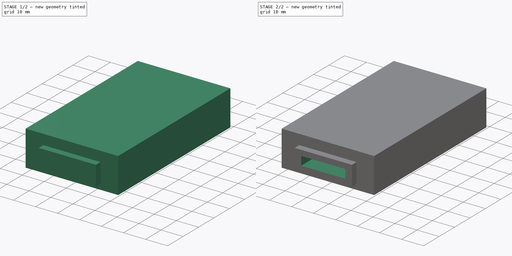
[diagram: build sequence overview — one tinted view per stage of 2, left to right]
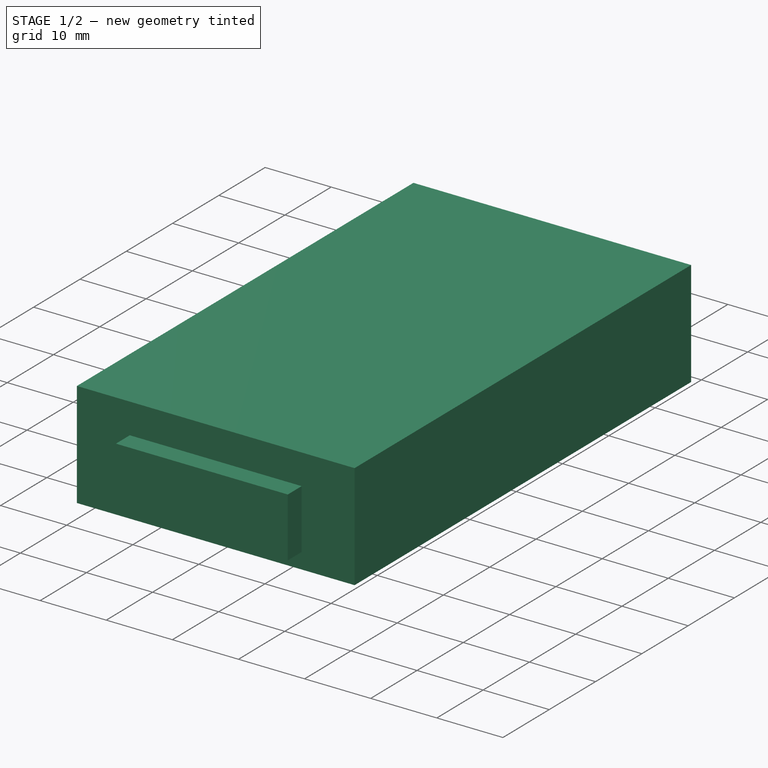
[diagram: stage 1 of 2 — iso view after this stage's code; geometry added in this stage tinted green]
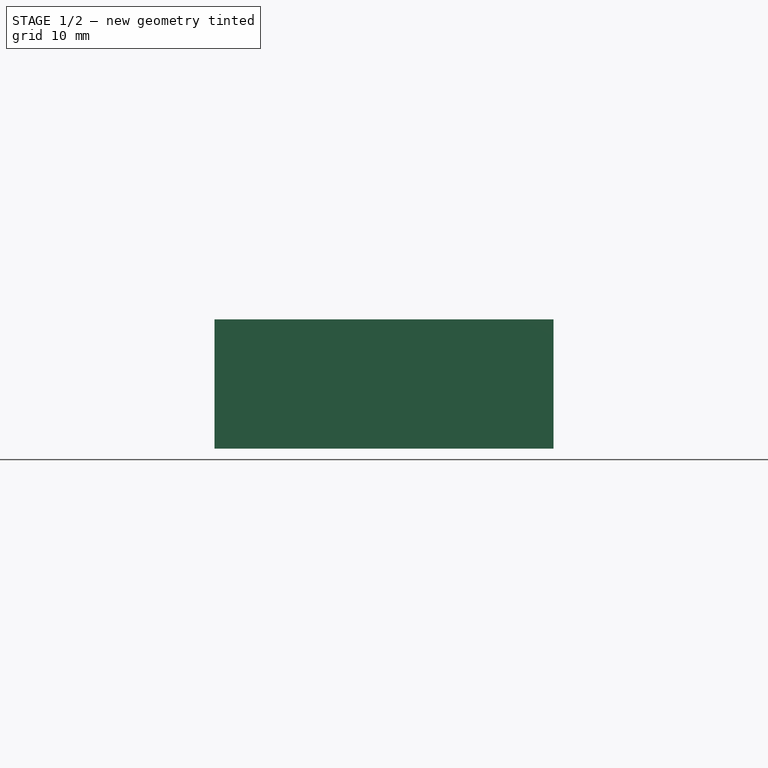
[diagram: stage 1 of 2 — front view after this stage's code; geometry added in this stage tinted green]
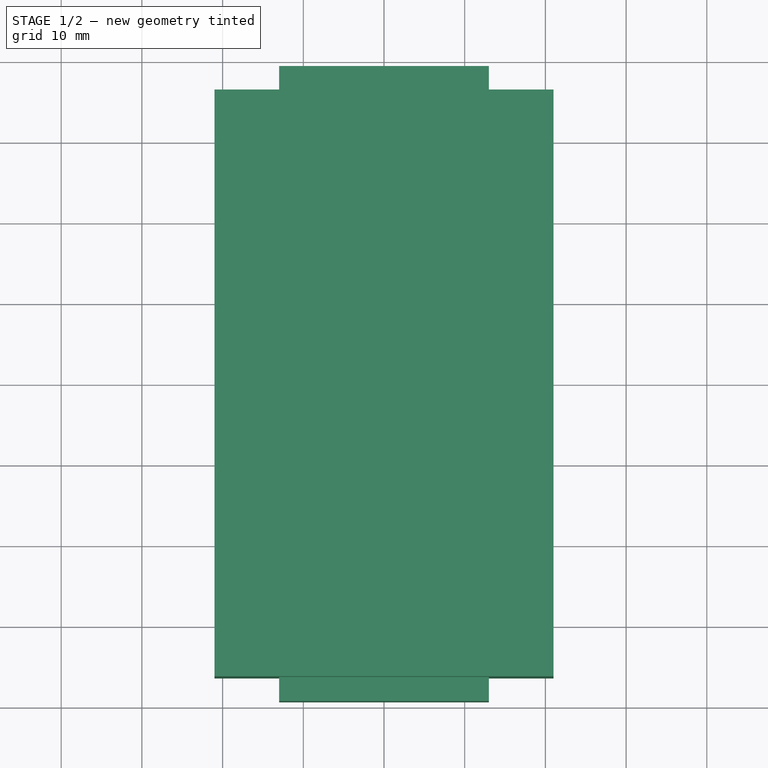
[diagram: stage 1 of 2 — top view after this stage's code; geometry added in this stage tinted green]
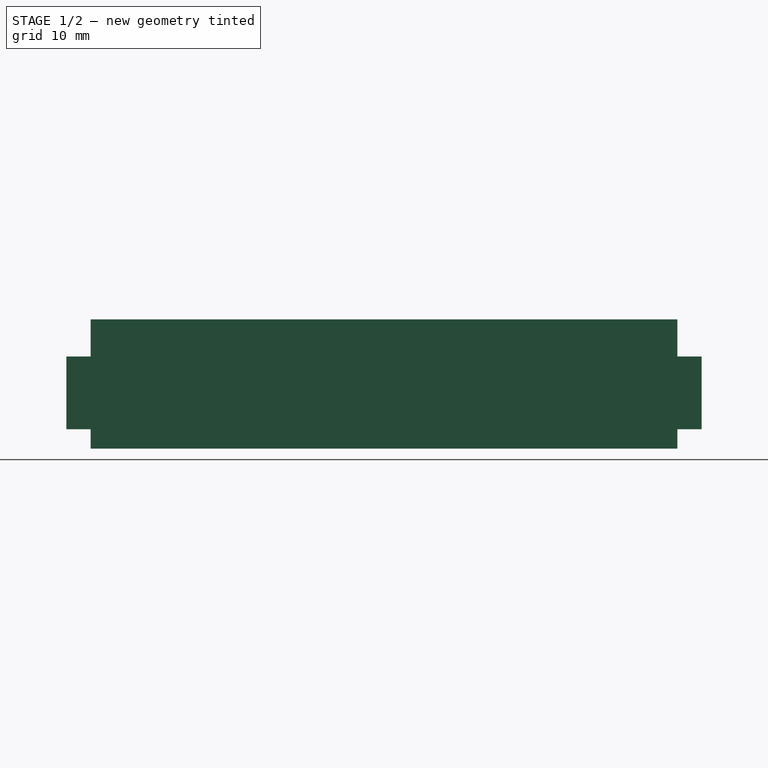
[diagram: stage 1 of 2 — right view after this stage's code; geometry added in this stage tinted green]
FCSTD DOCUMENT  (FreeCAD 0.19R24267 +99 (Git))
Label: Linear scale body
License: All rights reserved
LicenseURL: http://en.wikipedia.org/wiki/All_rights_reserved
objects: Sketcher::SketchObject×4, PartDesign::Pad×2, PartDesign::Pocket×2, PartDesign::Body×1
note: 13 computed .brp shape members not serialized (recipe doc carries the construction recipe); baked Part::Feature solids carry a one-line shape summary decoded from their .brp

FEATURE [Sketcher::SketchObject] Sketch  label="Main body cross section"
  FullyConstrained = true
  MapMode = 5
  Placement = pos=(0,0,0) rot=(1,0,0;1.5708rad)
  Support = -> [XZ_Plane]
  sketch-geometry (4):
    g0: LineSegment StartX=-21 StartY=0 StartZ=0 EndX=21 EndY=0 EndZ=0
    g1: LineSegment StartX=21 StartY=0 StartZ=0 EndX=21 EndY=16 EndZ=0
    g2: LineSegment StartX=21 StartY=16 StartZ=0 EndX=-21 EndY=16 EndZ=0
    g3: LineSegment StartX=-21 StartY=16 StartZ=0 EndX=-21 EndY=0 EndZ=0
  constraints (11):
    c: Coincident(g0,g1)
    c: Coincident(g1,g2)
    c: Coincident(g2,g3)
    c: Coincident(g3,g0)
    c: Horizontal(g2)
    c: Vertical(g1)
    c: Vertical(g3)
    c: PointOnObject(g0,g-1)
    c: DistanceX(g0,g0) = 42
    c: Symmetric(g0,g0,g-2)
    c: DistanceY(g0,g2) = 16
FEATURE [PartDesign::Pad] Pad  label="Main body length"
  Direction = (1,1,1)
  Length = 72.7
  Length2 = 100
  Midplane = true
  Placement = pos=(0,0,0) rot=(1,0,0;1.5708rad)
  Profile = -> Sketch
  Type = 0
FEATURE [Sketcher::SketchObject] Sketch001  label="End overhangs cross section"
  FullyConstrained = true
  MapMode = 5
  Placement = pos=(0,0,0) rot=(1,0,0;1.5708rad)
  Support = -> [XZ_Plane]
  sketch-geometry (4):
    g0: LineSegment StartX=-13 StartY=11.4 StartZ=0 EndX=13 EndY=11.4 EndZ=0
    g1: LineSegment StartX=13 StartY=11.4 StartZ=0 EndX=13 EndY=2.4 EndZ=0
    g2: LineSegment StartX=13 StartY=2.4 StartZ=0 EndX=-13 EndY=2.4 EndZ=0
    g3: LineSegment StartX=-13 StartY=2.4 StartZ=0 EndX=-13 EndY=11.4 EndZ=0
  constraints (11):
    c: Coincident(g0,g1)
    c: Coincident(g1,g2)
    c: Coincident(g2,g3)
    c: Coincident(g3,g0)
    c: Horizontal(g0)
    c: Vertical(g1)
    c: Vertical(g3)
    c: DistanceY(g-1,g2) = 2.4
    c: DistanceY(g3,g3) = 9
    c: DistanceX(g0,g0) = 26
    c: Symmetric(g2,g1,g-2)
FEATURE [PartDesign::Pad] Pad001  label="End overhangs length"
  BaseFeature = -> Pad
  Direction = (1,1,1)
  Length = 78.7
  Length2 = 100
  Midplane = true
  Placement = pos=(0,0,0) rot=(1,0,0;1.5708rad)
  Profile = -> Sketch001
  Type = 0
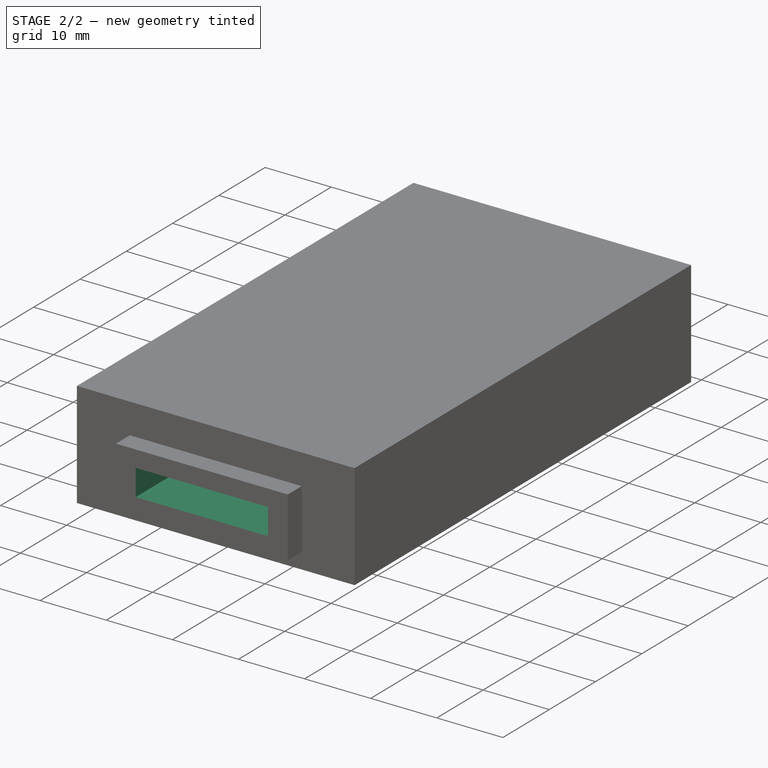
[diagram: stage 2 of 2 — iso view after this stage's code; geometry added in this stage tinted green]
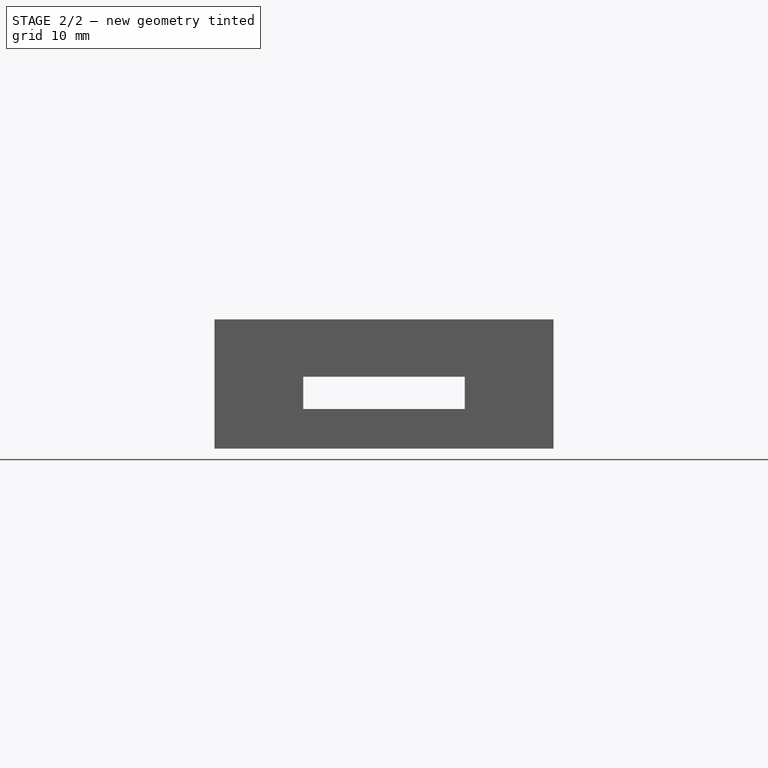
[diagram: stage 2 of 2 — front view after this stage's code; geometry added in this stage tinted green]
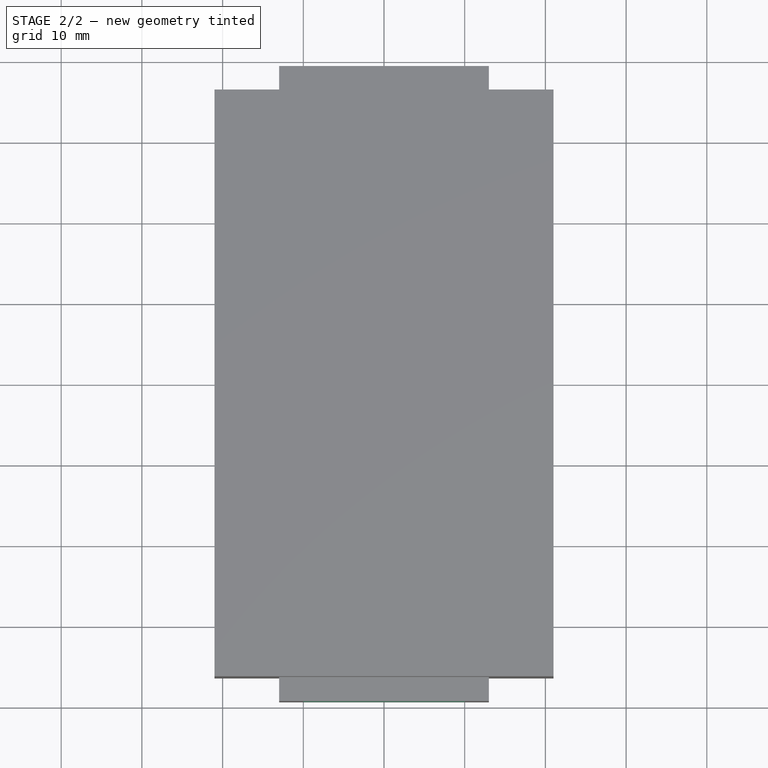
[diagram: stage 2 of 2 — top view after this stage's code; geometry added in this stage tinted green]
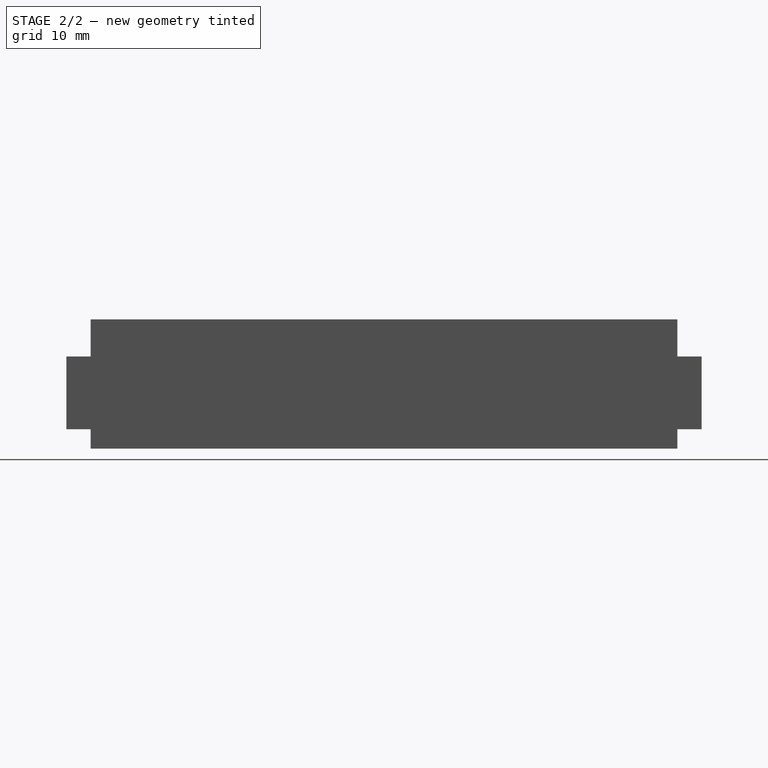
[diagram: stage 2 of 2 — right view after this stage's code; geometry added in this stage tinted green]
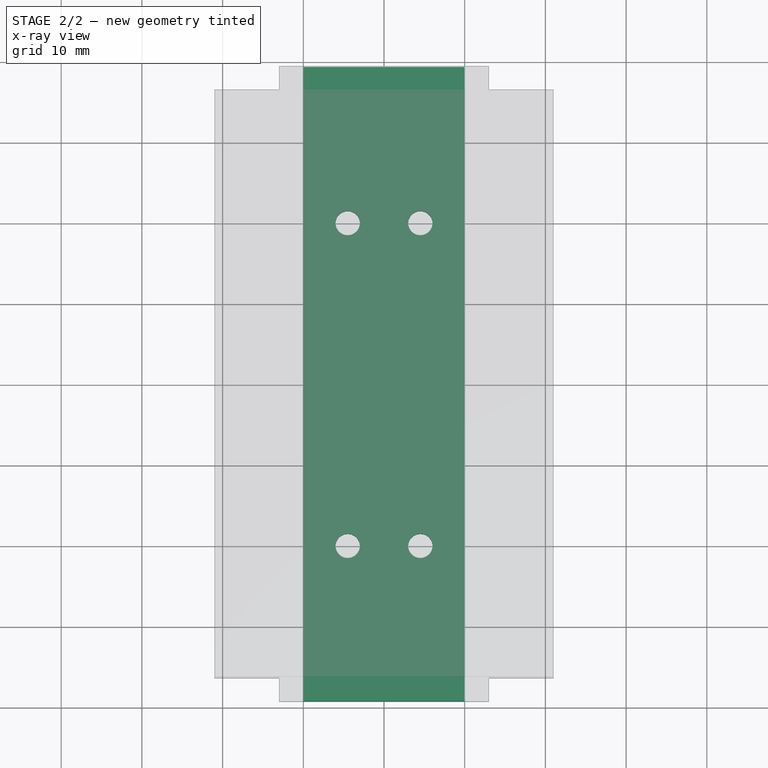
[diagram: stage 2 of 2 — x-ray composite at the top view; earlier geometry ghosted, this stage's added geometry solid]
FEATURE [Sketcher::SketchObject] Sketch002  label="Central slot cross section"
  FullyConstrained = true
  MapMode = 5
  Placement = pos=(0,0,0) rot=(1,0,0;1.5708rad)
  Support = -> [XZ_Plane]
  sketch-geometry (4):
    g0: LineSegment StartX=-10 StartY=8.9 StartZ=0 EndX=10 EndY=8.9 EndZ=0
    g1: LineSegment StartX=10 StartY=8.9 StartZ=0 EndX=10 EndY=4.9 EndZ=0
    g2: LineSegment StartX=10 StartY=4.9 StartZ=0 EndX=-10 EndY=4.9 EndZ=0
    g3: LineSegment StartX=-10 StartY=4.9 StartZ=0 EndX=-10 EndY=8.9 EndZ=0
  constraints (11):
    c: Coincident(g0,g1)
    c: Coincident(g1,g2)
    c: Coincident(g2,g3)
    c: Coincident(g3,g0)
    c: Horizontal(g0)
    c: Vertical(g1)
    c: Vertical(g3)
    c: Symmetric(g2,g1,g-2)
    c: DistanceY(g3,g3) = 4
    c: DistanceX(g2,g2) = 20
    c: DistanceY(g-1,g2) = 4.9
FEATURE [PartDesign::Pocket] Pocket  label="Central slot"
  BaseFeature = -> Pad001
  Length = 5
  Length2 = 100
  Midplane = true
  Placement = pos=(0,0,0) rot=(1,0,0;1.5708rad)
  Profile = -> Sketch002
  Type = 1
FEATURE [Sketcher::SketchObject] Sketch003  label="Mounting hole locations"
  FullyConstrained = true
  MapMode = 5
  Support = -> [XY_Plane]
  sketch-geometry (8):
    g0: Circle CenterX=-4.5 CenterY=20 CenterZ=0 NormalX=0 NormalY=0 NormalZ=1 AngleXU=0 Radius=1.5
    g1: Circle CenterX=4.5 CenterY=20 CenterZ=0 NormalX=0 NormalY=0 NormalZ=1 AngleXU=0 Radius=1.5
    g2: Circle CenterX=-4.5 CenterY=-20 CenterZ=0 NormalX=0 NormalY=0 NormalZ=1 AngleXU=0 Radius=1.5
    g3: Circle CenterX=4.5 CenterY=-20 CenterZ=0 NormalX=0 NormalY=0 NormalZ=1 AngleXU=0 Radius=1.5
    g4: LineSegment StartX=-4.5 StartY=-20 StartZ=0 EndX=-4.5 EndY=20 EndZ=0
    g5: LineSegment StartX=-4.5 StartY=20 StartZ=0 EndX=4.5 EndY=20 EndZ=0
    g6: LineSegment StartX=4.5 StartY=20 StartZ=0 EndX=4.5 EndY=-20 EndZ=0
    g7: LineSegment StartX=4.5 StartY=-20 StartZ=0 EndX=-4.5 EndY=-20 EndZ=0
  constraints (18):
    c: Coincident(g4,g2)
    c: Coincident(g4,g0)
    c: Coincident(g5,g1)
    c: Coincident(g6,g1)
    c: Coincident(g6,g3)
    c: Coincident(g7,g6)
    c: Coincident(g7,g2)
    c: Vertical(g6)
    c: Horizontal(g5)
    c: Coincident(g5,g0)
    c: Equal(g3,g2)
    c: Equal(g2,g0)
    c: Equal(g0,g1)
    c: Diameter(g0) = 3
    c: DistanceX(g5,g5) = 9
    c: DistanceY(g6,g6) = 40
    c: Symmetric(g3,g2,g-2)
    c: Symmetric(g2,g0,g-1)
FEATURE [PartDesign::Pocket] Pocket001  label="Mounting hole depth"
  BaseFeature = -> Pocket
  Length = 5
  Length2 = 100
  Placement = pos=(0,0,0) rot=(1,0,0;1.5708rad)
  Profile = -> Sketch003
  Reversed = true
  Type = 0
FEATURE [PartDesign::Body] Body
  Group = -> [Sketch,Pad,Sketch001,Pad001,Sketch002,Pocket,Sketch003,Pocket001]
  Origin = -> Origin
  Tip = -> Pocket001
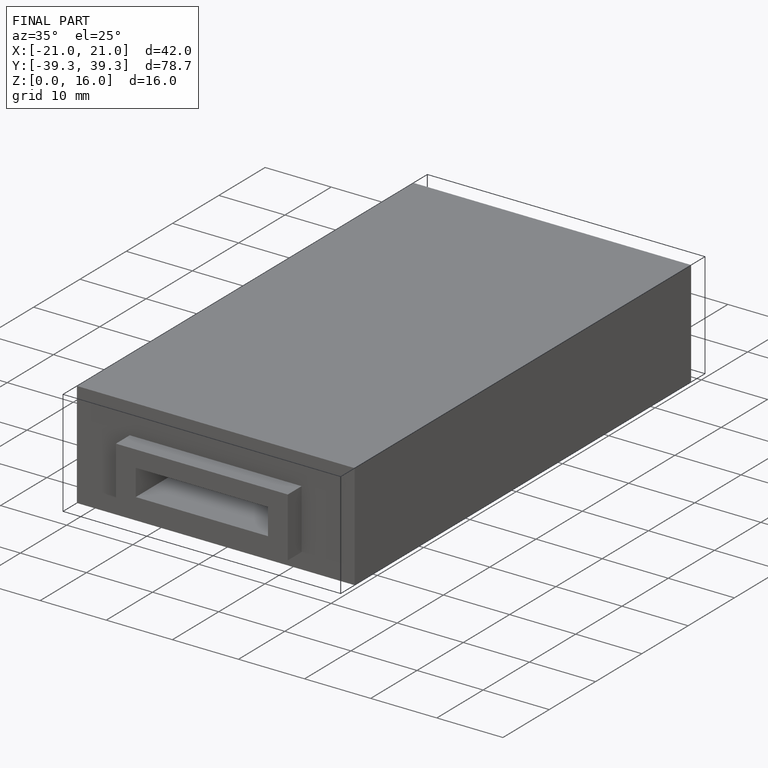
[diagram: finished part — iso view with bounding-box wireframe]
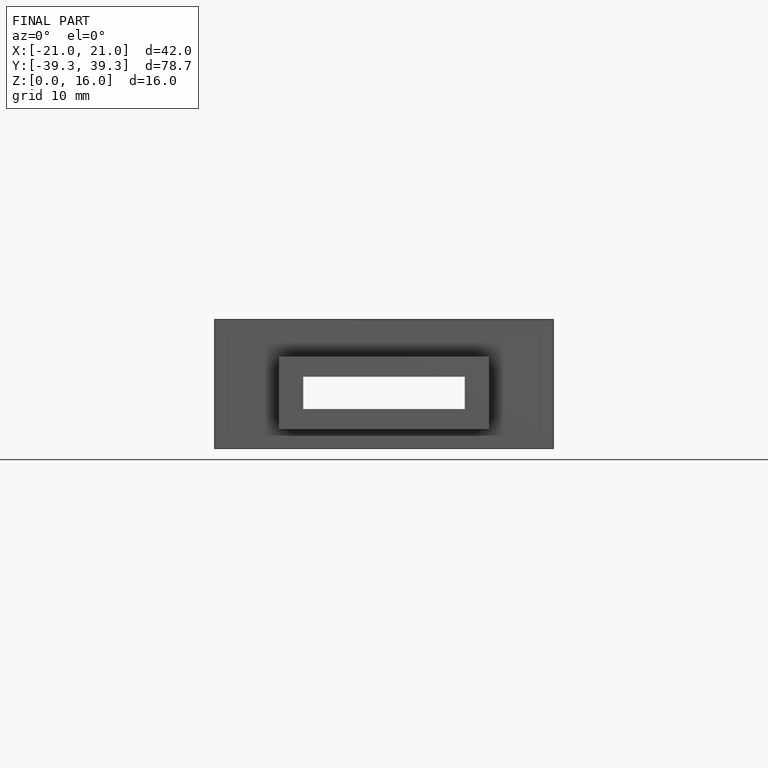
[diagram: finished part — front view with bounding-box wireframe]
